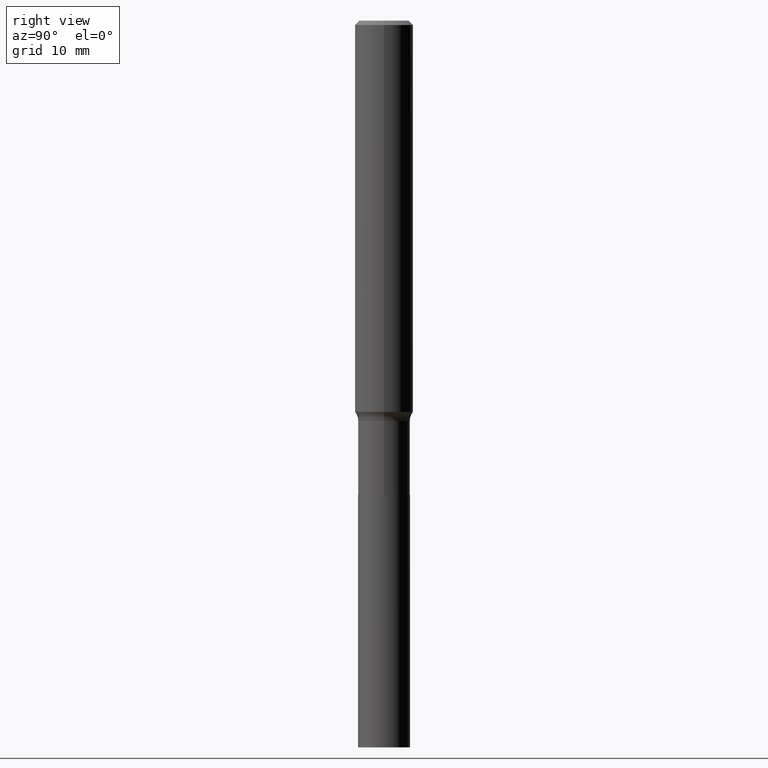
[diagram: clean part render]
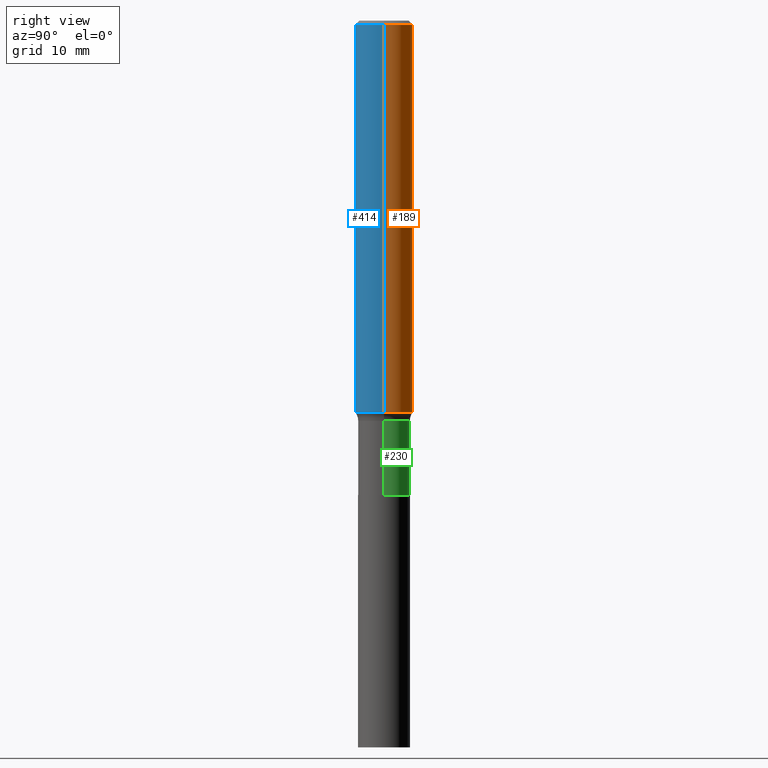
[diagram: same view with three faces highlighted in distinct colors, each labeled with its STEP entity id]
A machine part, right view with three faces highlighted in distinct colors.
Their STEP definitions:

[orange] entity #189 — the highlighted cylindrical surface (edge-blend (fillet) strip) has radius 4.0005 mm, axis along (-0, 0, 1).
#1 = AXIS2_PLACEMENT_3D ( 'NONE', #40, #228, #186 ) ;
#5 = CARTESIAN_POINT ( 'NONE',  ( -0.1575000000000001676, 1.119104808822158984E-15, -7.747322767151485392E-30 ) ) ;
#12 = DIRECTION ( 'NONE',  ( -2.445468806185136597E-29, 3.491481338843145583E-15, 1.000000000000000000 ) ) ;
#15 = ORIENTED_EDGE ( 'NONE', *, *, #284, .F. ) ;
#17 = CARTESIAN_POINT ( 'NONE',  ( 0.1575000000000003064, -8.500440321809438336E-15, -2.119622871169617451 ) ) ;
#23 = ORIENTED_EDGE ( 'NONE', *, *, #283, .T. ) ;
#40 = CARTESIAN_POINT ( 'NONE',  ( 0.000000000000000000, 0.000000000000000000, 0.000000000000000000 ) ) ;
#42 = CARTESIAN_POINT ( 'NONE',  ( -0.1575000000000003064, -6.281518891251688520E-15, -2.119622871169617451 ) ) ;
#46 = CARTESIAN_POINT ( 'NONE',  ( -0.1575000000000000011, -2.622450164529848973E-15, -0.02362500000000017017 ) ) ;
#47 = DIRECTION ( 'NONE',  ( 1.000000000000000000, -6.982962677686265922E-15, 0.000000000000000000 ) ) ;
#53 = LINE ( 'NONE', #308, #334 ) ;
#69 = CIRCLE ( 'NONE', #175, 0.1575000000000000011 ) ;
#71 = VERTEX_POINT ( 'NONE', #46 ) ;
#95 = EDGE_CURVE ( 'NONE', #210, #71, #430, .T. ) ;
#141 = ORIENTED_EDGE ( 'NONE', *, *, #239, .F. ) ;
#144 = VERTEX_POINT ( 'NONE', #298 ) ;
#152 = FACE_OUTER_BOUND ( 'NONE', #287, .T. ) ;
#165 = CARTESIAN_POINT ( 'NONE',  ( 5.183471612321876501E-29, -7.400623700073848490E-15, -2.119622871169617451 ) ) ;
#175 = AXIS2_PLACEMENT_3D ( 'NONE', #409, #12, #47 ) ;
#186 = DIRECTION ( 'NONE',  ( 1.000000000000000000, -6.982962677686267499E-15, 4.876176775795935232E-29 ) ) ;
#189 = ADVANCED_FACE ( 'NONE', ( #152 ), #372, .T. ) ;
#204 = ORIENTED_EDGE ( 'NONE', *, *, #95, .T. ) ;
#207 = CIRCLE ( 'NONE', #264, 0.1575000000000003064 ) ;
#210 = VERTEX_POINT ( 'NONE', #42 ) ;
#228 = DIRECTION ( 'NONE',  ( -2.445468806185136597E-29, 3.491481338843145583E-15, 1.000000000000000000 ) ) ;
#239 = EDGE_CURVE ( 'NONE', #144, #71, #69, .T. ) ;
#264 = AXIS2_PLACEMENT_3D ( 'NONE', #165, #302, #267 ) ;
#267 = DIRECTION ( 'NONE',  ( 1.000000000000000000, -6.982962677686267499E-15, 0.000000000000000000 ) ) ;
#283 = EDGE_CURVE ( 'NONE', #303, #210, #207, .T. ) ;
#284 = EDGE_CURVE ( 'NONE', #303, #144, #53, .T. ) ;
#287 = EDGE_LOOP ( 'NONE', ( #23, #204, #141, #15 ) ) ;
#294 = VECTOR ( 'NONE', #434, 39.37007874015748143 ) ;
#298 = CARTESIAN_POINT ( 'NONE',  ( 0.1575000000000000011, -1.182302868365756877E-15, -0.02362500000000017017 ) ) ;
#302 = DIRECTION ( 'NONE',  ( -2.445468806185136597E-29, 3.491481338843145583E-15, 1.000000000000000000 ) ) ;
#303 = VERTEX_POINT ( 'NONE', #17 ) ;
#308 = CARTESIAN_POINT ( 'NONE',  ( 0.1575000000000001676, -1.099816621735588269E-15, 7.679978421878606441E-30 ) ) ;
#312 = DIRECTION ( 'NONE',  ( -2.445468806185136877E-29, 3.491481338843145188E-15, 1.000000000000000000 ) ) ;
#334 = VECTOR ( 'NONE', #312, 39.37007874015748143 ) ;
#372 = CYLINDRICAL_SURFACE ( 'NONE', #1, 0.1575000000000001676 ) ;
#409 = CARTESIAN_POINT ( 'NONE',  ( 5.777420054612426359E-31, -8.248624663016990165E-17, -0.02362500000000017017 ) ) ;
#430 = LINE ( 'NONE', #5, #294 ) ;
#434 = DIRECTION ( 'NONE',  ( -2.445468806185136877E-29, 3.491481338843145188E-15, 1.000000000000000000 ) ) ;

[blue] entity #414 — the highlighted cylindrical surface (edge-blend (fillet) strip) has radius 4.0005 mm, axis along (-0, 0, 1).
#5 = CARTESIAN_POINT ( 'NONE',  ( -0.1575000000000001676, 1.119104808822158984E-15, -7.747322767151485392E-30 ) ) ;
#17 = CARTESIAN_POINT ( 'NONE',  ( 0.1575000000000003064, -8.500440321809438336E-15, -2.119622871169617451 ) ) ;
#42 = CARTESIAN_POINT ( 'NONE',  ( -0.1575000000000003064, -6.281518891251688520E-15, -2.119622871169617451 ) ) ;
#46 = CARTESIAN_POINT ( 'NONE',  ( -0.1575000000000000011, -2.622450164529848973E-15, -0.02362500000000017017 ) ) ;
#53 = LINE ( 'NONE', #308, #334 ) ;
#70 = DIRECTION ( 'NONE',  ( 1.000000000000000000, -6.982962677686267499E-15, 0.000000000000000000 ) ) ;
#71 = VERTEX_POINT ( 'NONE', #46 ) ;
#90 = ORIENTED_EDGE ( 'NONE', *, *, #449, .T. ) ;
#93 = AXIS2_PLACEMENT_3D ( 'NONE', #461, #133, #70 ) ;
#95 = EDGE_CURVE ( 'NONE', #210, #71, #430, .T. ) ;
#99 = CYLINDRICAL_SURFACE ( 'NONE', #285, 0.1575000000000001676 ) ;
#114 = CIRCLE ( 'NONE', #200, 0.1575000000000000011 ) ;
#123 = EDGE_LOOP ( 'NONE', ( #139, #90, #386, #252 ) ) ;
#124 = DIRECTION ( 'NONE',  ( -2.445468806185136597E-29, 3.491481338843145583E-15, 1.000000000000000000 ) ) ;
#133 = DIRECTION ( 'NONE',  ( -2.445468806185136597E-29, 3.491481338843145583E-15, 1.000000000000000000 ) ) ;
#139 = ORIENTED_EDGE ( 'NONE', *, *, #95, .F. ) ;
#144 = VERTEX_POINT ( 'NONE', #298 ) ;
#153 = CIRCLE ( 'NONE', #93, 0.1575000000000003064 ) ;
#200 = AXIS2_PLACEMENT_3D ( 'NONE', #445, #124, #413 ) ;
#210 = VERTEX_POINT ( 'NONE', #42 ) ;
#212 = CARTESIAN_POINT ( 'NONE',  ( 0.000000000000000000, 0.000000000000000000, 0.000000000000000000 ) ) ;
#251 = DIRECTION ( 'NONE',  ( -2.445468806185136597E-29, 3.491481338843145583E-15, 1.000000000000000000 ) ) ;
#252 = ORIENTED_EDGE ( 'NONE', *, *, #262, .F. ) ;
#262 = EDGE_CURVE ( 'NONE', #71, #144, #114, .T. ) ;
#280 = FACE_OUTER_BOUND ( 'NONE', #123, .T. ) ;
#284 = EDGE_CURVE ( 'NONE', #303, #144, #53, .T. ) ;
#285 = AXIS2_PLACEMENT_3D ( 'NONE', #212, #251, #387 ) ;
#294 = VECTOR ( 'NONE', #434, 39.37007874015748143 ) ;
#298 = CARTESIAN_POINT ( 'NONE',  ( 0.1575000000000000011, -1.182302868365756877E-15, -0.02362500000000017017 ) ) ;
#303 = VERTEX_POINT ( 'NONE', #17 ) ;
#308 = CARTESIAN_POINT ( 'NONE',  ( 0.1575000000000001676, -1.099816621735588269E-15, 7.679978421878606441E-30 ) ) ;
#312 = DIRECTION ( 'NONE',  ( -2.445468806185136877E-29, 3.491481338843145188E-15, 1.000000000000000000 ) ) ;
#334 = VECTOR ( 'NONE', #312, 39.37007874015748143 ) ;
#386 = ORIENTED_EDGE ( 'NONE', *, *, #284, .T. ) ;
#387 = DIRECTION ( 'NONE',  ( 1.000000000000000000, -6.982962677686267499E-15, 4.876176775795935232E-29 ) ) ;
#413 = DIRECTION ( 'NONE',  ( 1.000000000000000000, -6.982962677686265922E-15, 0.000000000000000000 ) ) ;
#414 = ADVANCED_FACE ( 'NONE', ( #280 ), #99, .T. ) ;
#430 = LINE ( 'NONE', #5, #294 ) ;
#434 = DIRECTION ( 'NONE',  ( -2.445468806185136877E-29, 3.491481338843145188E-15, 1.000000000000000000 ) ) ;
#445 = CARTESIAN_POINT ( 'NONE',  ( 5.777420054612426359E-31, -8.248624663016990165E-17, -0.02362500000000017017 ) ) ;
#449 = EDGE_CURVE ( 'NONE', #210, #303, #153, .T. ) ;
#461 = CARTESIAN_POINT ( 'NONE',  ( 5.183471612321876501E-29, -7.400623700073848490E-15, -2.119622871169617451 ) ) ;

[green] entity #230 — the highlighted cylindrical surface (edge-blend (fillet) strip) has radius 3.5712 mm, axis along (-0, 0, 1).
#6 = DIRECTION ( 'NONE',  ( 1.000000000000000000, -6.982962677686265133E-15, 0.000000000000000000 ) ) ;
#8 = VERTEX_POINT ( 'NONE', #213 ) ;
#10 = CIRCLE ( 'NONE', #276, 0.1406000000000000028 ) ;
#13 = DIRECTION ( 'NONE',  ( 1.000000000000000000, -6.982962677686266711E-15, 4.876176775795935232E-29 ) ) ;
#28 = VERTEX_POINT ( 'NONE', #421 ) ;
#29 = CARTESIAN_POINT ( 'NONE',  ( 0.1405999999999999750, -9.818045524826889086E-16, 6.855904546769083471E-30 ) ) ;
#31 = EDGE_LOOP ( 'NONE', ( #248, #282, #234, #307 ) ) ;
#64 = CARTESIAN_POINT ( 'NONE',  ( 0.1405999999999999472, -8.554129280165703542E-15, -2.168800000000000061 ) ) ;
#107 = AXIS2_PLACEMENT_3D ( 'NONE', #238, #341, #231 ) ;
#120 = CYLINDRICAL_SURFACE ( 'NONE', #143, 0.1405999999999999750 ) ;
#143 = AXIS2_PLACEMENT_3D ( 'NONE', #443, #233, #13 ) ;
#169 = FACE_OUTER_BOUND ( 'NONE', #31, .T. ) ;
#174 = EDGE_CURVE ( 'NONE', #28, #388, #10, .T. ) ;
#192 = CIRCLE ( 'NONE', #107, 0.1405999999999999472 ) ;
#205 = LINE ( 'NONE', #441, #310 ) ;
#213 = CARTESIAN_POINT ( 'NONE',  ( -0.1405999999999999472, -7.272819927441538434E-15, -2.168800000000000061 ) ) ;
#230 = ADVANCED_FACE ( 'NONE', ( #169 ), #120, .T. ) ;
#231 = DIRECTION ( 'NONE',  ( 1.000000000000000000, -6.982962677686268288E-15, 0.000000000000000000 ) ) ;
#233 = DIRECTION ( 'NONE',  ( -2.445468806185136597E-29, 3.491481338843145583E-15, 1.000000000000000000 ) ) ;
#234 = ORIENTED_EDGE ( 'NONE', *, *, #304, .F. ) ;
#238 = CARTESIAN_POINT ( 'NONE',  ( 5.303732746854324050E-29, -7.572324727683015225E-15, -2.168800000000000061 ) ) ;
#248 = ORIENTED_EDGE ( 'NONE', *, *, #174, .T. ) ;
#249 = LINE ( 'NONE', #29, #426 ) ;
#276 = AXIS2_PLACEMENT_3D ( 'NONE', #431, #406, #6 ) ;
#282 = ORIENTED_EDGE ( 'NONE', *, *, #340, .T. ) ;
#304 = EDGE_CURVE ( 'NONE', #446, #8, #192, .T. ) ;
#307 = ORIENTED_EDGE ( 'NONE', *, *, #435, .F. ) ;
#310 = VECTOR ( 'NONE', #408, 39.37007874015748143 ) ;
#324 = CARTESIAN_POINT ( 'NONE',  ( -0.1406000000000000028, -7.272819927441538434E-15, -2.569500000000000117 ) ) ;
#340 = EDGE_CURVE ( 'NONE', #388, #8, #205, .T. ) ;
#341 = DIRECTION ( 'NONE',  ( -2.445468806185136597E-29, 3.491481338843145583E-15, 1.000000000000000000 ) ) ;
#388 = VERTEX_POINT ( 'NONE', #324 ) ;
#406 = DIRECTION ( 'NONE',  ( -2.445468806185136597E-29, 3.491481338843145583E-15, 1.000000000000000000 ) ) ;
#408 = DIRECTION ( 'NONE',  ( -2.445468806185136877E-29, 3.491481338843145188E-15, 1.000000000000000000 ) ) ;
#421 = CARTESIAN_POINT ( 'NONE',  ( 0.1406000000000000028, -9.953165852640150933E-15, -2.569500000000000117 ) ) ;
#426 = VECTOR ( 'NONE', #458, 39.37007874015748143 ) ;
#431 = CARTESIAN_POINT ( 'NONE',  ( 6.283632097492708387E-29, -8.971361300157462616E-15, -2.569500000000000117 ) ) ;
#435 = EDGE_CURVE ( 'NONE', #28, #446, #249, .T. ) ;
#441 = CARTESIAN_POINT ( 'NONE',  ( -0.1405999999999999750, 9.990230864787006837E-16, -6.916022736898396338E-30 ) ) ;
#443 = CARTESIAN_POINT ( 'NONE',  ( 0.000000000000000000, 0.000000000000000000, 0.000000000000000000 ) ) ;
#446 = VERTEX_POINT ( 'NONE', #64 ) ;
#458 = DIRECTION ( 'NONE',  ( -2.445468806185136877E-29, 3.491481338843145188E-15, 1.000000000000000000 ) ) ;